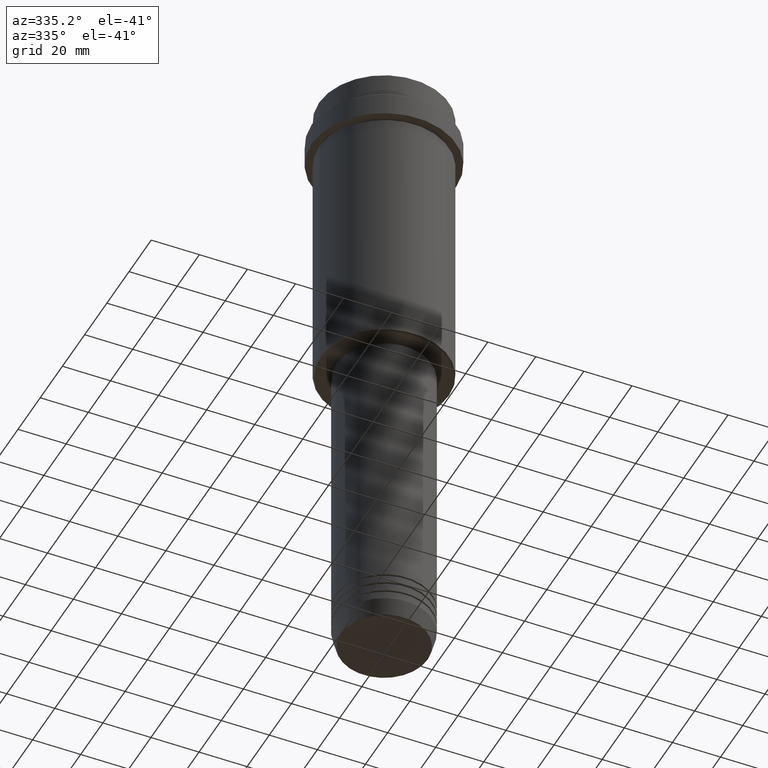
[diagram: clean part render]
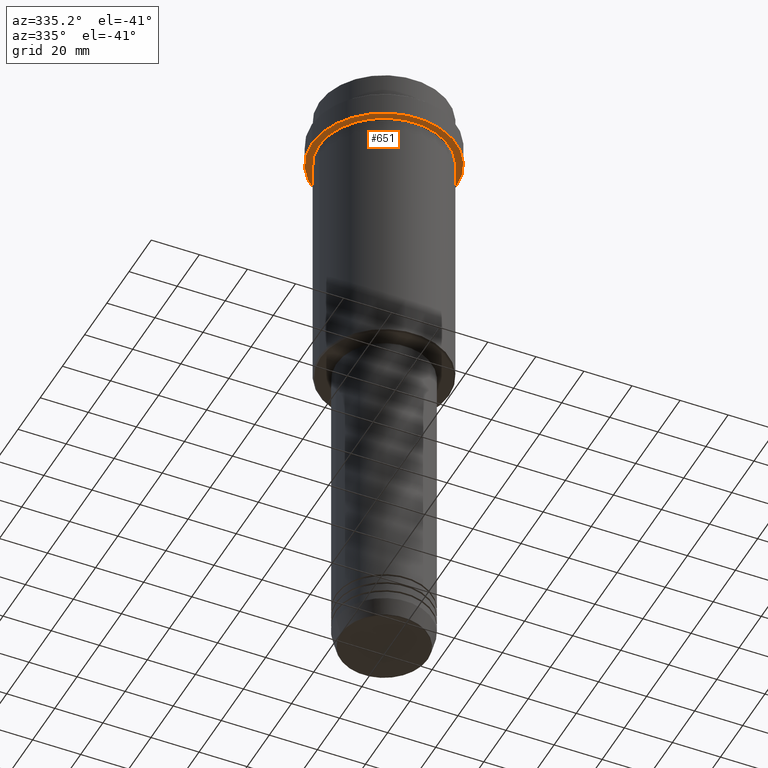
[diagram: same view with one face highlighted and labeled with its STEP entity id]
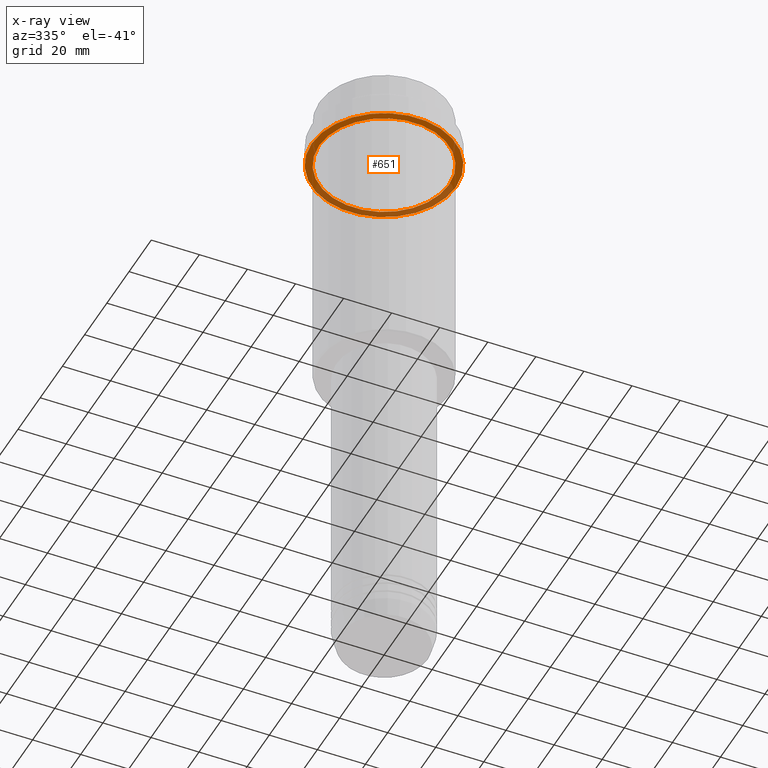
[diagram: x-ray of the same camera — body ghosted, the highlighted face saturated]
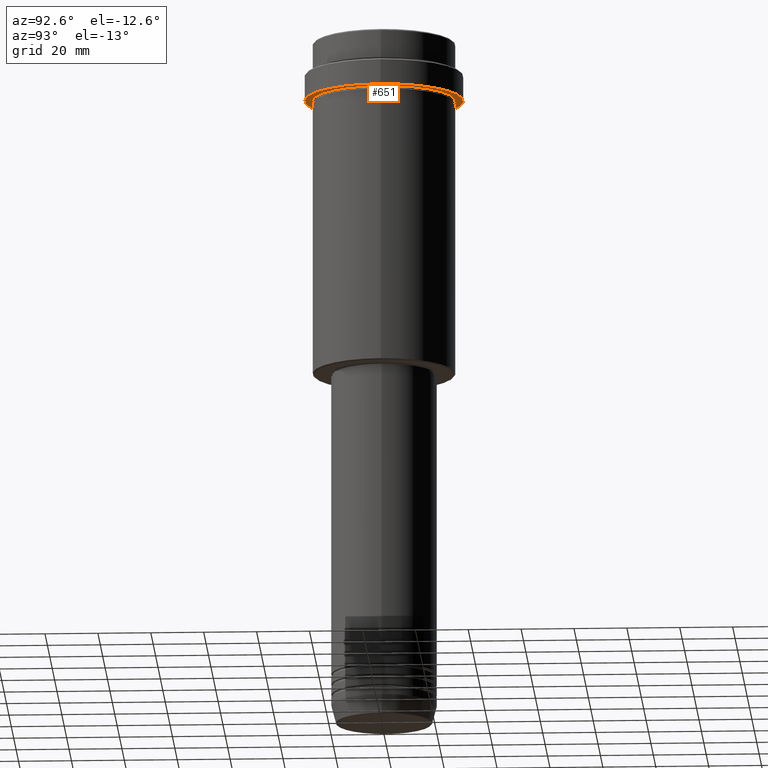
[diagram: same view with one face highlighted and labeled with its STEP entity id]
A machine part, auxiliary view. The second image highlights one B-rep face of the part: STEP entity #651.
The next image is the same camera in x-ray: the body ghosted, the highlighted face saturated — about 36% of this face is hidden behind the body in this view.
A second angle (auxiliary view) of the same face is appended — the face is thin or edge-on in the first view.
In plain terms, the highlighted planar face has unit normal (0, 0, -1).
Its self-contained STEP definition (entity closure, byte-faithful):
#8 = DIRECTION ( 'NONE',  ( -1.000000000000000000, 0.000000000000000000, -0.000000000000000000 ) ) ;
#14 = CIRCLE ( 'NONE', #266, 29.99999999999999645 ) ;
#36 = DIRECTION ( 'NONE',  ( -0.000000000000000000, -0.000000000000000000, 1.000000000000000000 ) ) ;
#57 = EDGE_CURVE ( 'NONE', #253, #670, #14, .T. ) ;
#67 = DIRECTION ( 'NONE',  ( -0.000000000000000000, -0.000000000000000000, 1.000000000000000000 ) ) ;
#123 = CIRCLE ( 'NONE', #477, 29.99999999999999645 ) ;
#169 = EDGE_CURVE ( 'NONE', #192, #747, #882, .T. ) ;
#192 = VERTEX_POINT ( 'NONE', #1189 ) ;
#207 = DIRECTION ( 'NONE',  ( -1.000000000000000000, 0.000000000000000000, 0.000000000000000000 ) ) ;
#211 = DIRECTION ( 'NONE',  ( -1.000000000000000000, 0.000000000000000000, 0.000000000000000000 ) ) ;
#215 = DIRECTION ( 'NONE',  ( 0.000000000000000000, 0.000000000000000000, -1.000000000000000000 ) ) ;
#219 = DIRECTION ( 'NONE',  ( 1.000000000000000000, 0.000000000000000000, 0.000000000000000000 ) ) ;
#253 = VERTEX_POINT ( 'NONE', #1326 ) ;
#266 = AXIS2_PLACEMENT_3D ( 'NONE', #648, #67, #308 ) ;
#308 = DIRECTION ( 'NONE',  ( 1.000000000000000000, 0.000000000000000000, 0.000000000000000000 ) ) ;
#335 = DIRECTION ( 'NONE',  ( -0.000000000000000000, -0.000000000000000000, 1.000000000000000000 ) ) ;
#411 = EDGE_LOOP ( 'NONE', ( #1359, #1383 ) ) ;
#461 = CARTESIAN_POINT ( 'NONE',  ( 0.000000000000000000, 0.000000000000000000, -22.00000000000000000 ) ) ;
#477 = AXIS2_PLACEMENT_3D ( 'NONE', #1004, #36, #219 ) ;
#512 = CARTESIAN_POINT ( 'NONE',  ( 26.99999999999999289, 3.306546357697852944E-15, -22.00000000000000000 ) ) ;
#552 = PLANE ( 'NONE',  #773 ) ;
#648 = CARTESIAN_POINT ( 'NONE',  ( 0.000000000000000000, 0.000000000000000000, -22.00000000000000355 ) ) ;
#651 = ADVANCED_FACE ( 'NONE', ( #775, #766 ), #552, .T. ) ;
#657 = CARTESIAN_POINT ( 'NONE',  ( 29.99999999999999645, 0.000000000000000000, -22.00000000000000355 ) ) ;
#666 = DIRECTION ( 'NONE',  ( -0.000000000000000000, -0.000000000000000000, 1.000000000000000000 ) ) ;
#670 = VERTEX_POINT ( 'NONE', #657 ) ;
#747 = VERTEX_POINT ( 'NONE', #512 ) ;
#759 = CARTESIAN_POINT ( 'NONE',  ( 0.000000000000000000, 0.000000000000000000, -22.00000000000000000 ) ) ;
#766 = FACE_OUTER_BOUND ( 'NONE', #1345, .T. ) ;
#773 = AXIS2_PLACEMENT_3D ( 'NONE', #1414, #215, #8 ) ;
#775 = FACE_BOUND ( 'NONE', #411, .T. ) ;
#882 = CIRCLE ( 'NONE', #1128, 26.99999999999999289 ) ;
#892 = EDGE_CURVE ( 'NONE', #747, #192, #903, .T. ) ;
#903 = CIRCLE ( 'NONE', #970, 26.99999999999999289 ) ;
#970 = AXIS2_PLACEMENT_3D ( 'NONE', #759, #335, #207 ) ;
#1004 = CARTESIAN_POINT ( 'NONE',  ( 0.000000000000000000, 0.000000000000000000, -22.00000000000000355 ) ) ;
#1128 = AXIS2_PLACEMENT_3D ( 'NONE', #461, #666, #211 ) ;
#1145 = EDGE_CURVE ( 'NONE', #670, #253, #123, .T. ) ;
#1186 = ORIENTED_EDGE ( 'NONE', *, *, #57, .F. ) ;
#1189 = CARTESIAN_POINT ( 'NONE',  ( -26.99999999999999289, 0.000000000000000000, -22.00000000000000000 ) ) ;
#1193 = ORIENTED_EDGE ( 'NONE', *, *, #1145, .F. ) ;
#1326 = CARTESIAN_POINT ( 'NONE',  ( -29.99999999999999645, 3.673940397442058389E-15, -22.00000000000000355 ) ) ;
#1345 = EDGE_LOOP ( 'NONE', ( #1193, #1186 ) ) ;
#1359 = ORIENTED_EDGE ( 'NONE', *, *, #169, .T. ) ;
#1383 = ORIENTED_EDGE ( 'NONE', *, *, #892, .T. ) ;
#1414 = CARTESIAN_POINT ( 'NONE',  ( 0.000000000000000000, 29.99999999999999645, -22.00000000000000000 ) ) ;